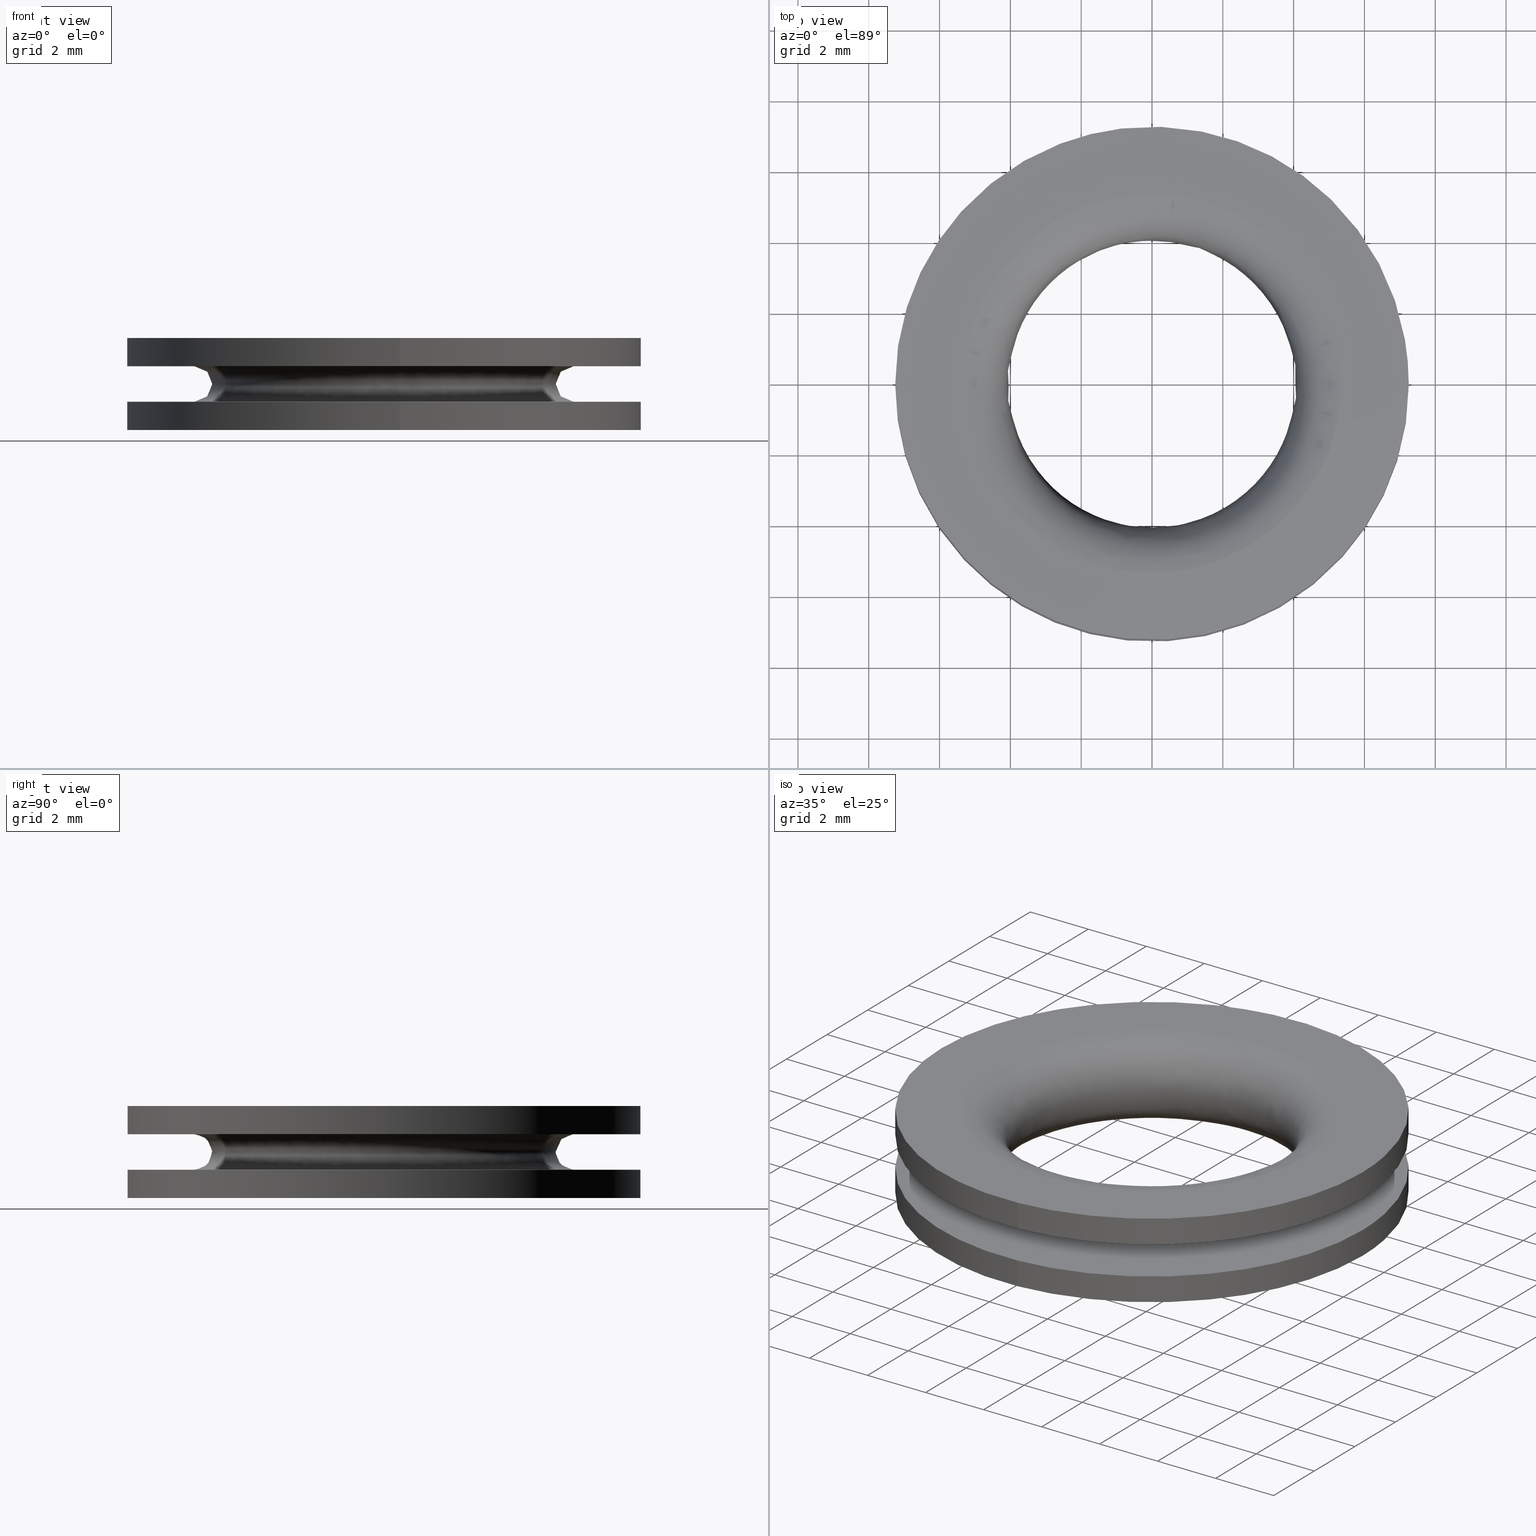
[diagram: canonical four-view strip — front | top / right | iso, engineering-drawing reading convention]
A machine part, canonical four-view strip (front | top / right | iso — engineering-drawing reading convention). The complete STEP part file that produces these views, byte-faithful:
ISO-10303-21;
HEADER;
/****************************************************************
 * Generated by software with PDE/Lib inside                    *
 * PDElib Version 4.4.1-0003, patched  Thursday August 19 11:58 *
 * International Technegroup Inc. (www.iti-oh.com)              *
 ****************************************************************/
FILE_DESCRIPTION((''),'2;1');
FILE_NAME('','2005-07-15T15:03:35',(''),(''),'','CADfix','');
FILE_SCHEMA(('AUTOMOTIVE_DESIGN'));
ENDSEC;
DATA;
#5=APPLICATION_CONTEXT('automotive design');
#6=APPLICATION_PROTOCOL_DEFINITION('Draft International Standard','automotive_design',1998,#5);
#7=PRODUCT_CONTEXT('None',#5,'mechanical');
#8=PRODUCT('grommet','','None',(#7));
#9=PRODUCT_RELATED_PRODUCT_CATEGORY('part','description',(#8));
#10=PRODUCT_DEFINITION_FORMATION('None','None',#8);
#11=PRODUCT_DEFINITION_CONTEXT('part definition',#5,'design');
#12=PRODUCT_DEFINITION('None','None',#10,#11);
#18=(NAMED_UNIT(*)PLANE_ANGLE_UNIT()SI_UNIT($,.RADIAN.));
#19=DIMENSIONAL_EXPONENTS(0.0,0.0,0.0,0.0,0.0,0.0,0.0);
#20=PLANE_ANGLE_MEASURE_WITH_UNIT(PLANE_ANGLE_MEASURE(0.017453292500000),#18);
#24=(CONVERSION_BASED_UNIT('DEGREE',#20)NAMED_UNIT(#19)PLANE_ANGLE_UNIT());
#28=(NAMED_UNIT(*)SI_UNIT($,.STERADIAN.)SOLID_ANGLE_UNIT());
#32=(LENGTH_UNIT()NAMED_UNIT(*)SI_UNIT(.MILLI.,.METRE.));
#34=UNCERTAINTY_MEASURE_WITH_UNIT(LENGTH_MEASURE(0.001000000000000),#32,'DISTANCE_ACCURACY_VALUE','');
#36=(GEOMETRIC_REPRESENTATION_CONTEXT(3)GLOBAL_UNCERTAINTY_ASSIGNED_CONTEXT((#34))GLOBAL_UNIT_ASSIGNED_CONTEXT((#24,#28,#32))REPRESENTATION_CONTEXT('None','None'));
#37=AXIS2_PLACEMENT_3D('',#38,#39,#40);
#38=CARTESIAN_POINT('',(0.0,0.0,0.0));
#39=DIRECTION('',(0.0,0.0,1.0));
#40=DIRECTION('',(1.0,0.0,0.0));
#41=ADVANCED_BREP_SHAPE_REPRESENTATION('',(#37,#973),#36);
#42=PRODUCT_DEFINITION_SHAPE('','',#12);
#43=SHAPE_DEFINITION_REPRESENTATION(#42,#41);
#44=CARTESIAN_POINT('',(-0.855748083227264,7.199318073127055,2.619998975000001));
#45=CARTESIAN_POINT('',(-0.649706693010609,7.223809215614775,2.619998975000001));
#46=CARTESIAN_POINT('',(-0.442601850579174,7.236476290423735,2.619998975000001));
#47=CARTESIAN_POINT('',(6.793874439844561,7.679078141002909,2.619998975000000));
#48=CARTESIAN_POINT('',(7.236476290423735,0.442601850579174,2.619998975000001));
#49=CARTESIAN_POINT('',(7.679078141002909,-6.793874439844561,2.619998975000000));
#50=CARTESIAN_POINT('',(0.442601850579174,-7.236476290423735,2.619998975000001));
#51=CARTESIAN_POINT('',(-0.855748083227264,7.199318073127055,1.779500025625000));
#52=CARTESIAN_POINT('',(-0.649706693010609,7.223809215614775,1.779500025625000));
#53=CARTESIAN_POINT('',(-0.442601850579174,7.236476290423735,1.779500025625000));
#54=CARTESIAN_POINT('',(6.793874439844561,7.679078141002909,1.779500025625001));
#55=CARTESIAN_POINT('',(7.236476290423735,0.442601850579174,1.779500025625000));
#56=CARTESIAN_POINT('',(7.679078141002909,-6.793874439844561,1.779500025625001));
#57=CARTESIAN_POINT('',(0.442601850579174,-7.236476290423735,1.779500025625000));
#65=(BOUNDED_SURFACE()B_SPLINE_SURFACE(2,1,((#44,#51),(#45,#52),(#46,#53),(#47,#54),(#48,#55),(#49,#56),(#50,#57)),.UNSPECIFIED.,.F.,.F.,.U.)B_SPLINE_SURFACE_WITH_KNOTS((3,2,2,3),(2,2),(0.0,0.480487666078621,12.492679318044130,24.504870970009630),(0.0,1.0),.UNSPECIFIED.)GEOMETRIC_REPRESENTATION_ITEM()RATIONAL_B_SPLINE_SURFACE(((0.977505800795127,0.977505800795127),(0.988284271247462,0.988284271247462),(1.0,1.0),(0.707106781186548,0.707106781186548),(1.0,1.0),(0.707106781186548,0.707106781186548),(1.0,1.0)))REPRESENTATION_ITEM('')SURFACE());
#66=CARTESIAN_POINT('',(-0.855743498730361,7.199318618061044,1.800000000000064));
#67=VERTEX_POINT('',#66);
#68=CARTESIAN_POINT('',(7.249999000000000,0.0,1.800000000000000));
#69=VERTEX_POINT('',#68);
#70=CARTESIAN_POINT('',(-0.855743498730361,7.199318618061044,1.800000000000064));
#71=CARTESIAN_POINT('',(-0.429372491770638,7.249998999999999,1.800000000000000));
#72=CARTESIAN_POINT('',(0.0,7.249999000000000,1.800000000000000));
#73=CARTESIAN_POINT('',(7.249998999999999,7.249998999999999,1.800000000000001));
#74=CARTESIAN_POINT('',(7.249999000000000,0.0,1.800000000000000));
#82=(BOUNDED_CURVE()B_SPLINE_CURVE(2,(#70,#71,#72,#73,#74),.UNSPECIFIED.,.F.,.U.)B_SPLINE_CURVE_WITH_KNOTS((3,2,3),(0.229562581136241,0.250000000000000,0.500000000000000),.UNSPECIFIED.)CURVE()GEOMETRIC_REPRESENTATION_ITEM()RATIONAL_B_SPLINE_CURVE((0.956026965128767,0.976056074419019,1.0,0.707106781186547,1.0))REPRESENTATION_ITEM(''));
#83=EDGE_CURVE('',#67,#69,#82,.T.);
#84=ORIENTED_EDGE('',*,*,#83,.F.);
#85=CARTESIAN_POINT('',(-0.855743555278183,7.199318611339550,2.599999000000000));
#86=VERTEX_POINT('',#85);
#87=CARTESIAN_POINT('',(-0.855743555278183,7.199318611339550,2.599999000000000));
#88=CARTESIAN_POINT('',(-0.855743498730361,7.199318618061044,1.800000000000064));
#89=QUASI_UNIFORM_CURVE('',1,(#87,#88),.UNSPECIFIED.,.F.,.U.);
#90=EDGE_CURVE('',#86,#67,#89,.T.);
#91=ORIENTED_EDGE('',*,*,#90,.F.);
#92=CARTESIAN_POINT('',(7.249999000000000,0.0,2.599999000000000));
#93=VERTEX_POINT('',#92);
#94=CARTESIAN_POINT('',(-0.855743555278183,7.199318611339550,2.599999000000000));
#95=CARTESIAN_POINT('',(-0.429372520343452,7.249999000000001,2.599999000000001));
#96=CARTESIAN_POINT('',(0.0,7.249999000000000,2.599999000000000));
#97=CARTESIAN_POINT('',(7.249998999999999,7.249998999999999,2.599999000000000));
#98=CARTESIAN_POINT('',(7.249999000000000,0.0,2.599999000000000));
#106=(BOUNDED_CURVE()B_SPLINE_CURVE(2,(#94,#95,#96,#97,#98),.UNSPECIFIED.,.F.,.U.)B_SPLINE_CURVE_WITH_KNOTS((3,2,3),(0.229562579808786,0.250000000000000,0.500000000000000),.UNSPECIFIED.)CURVE()GEOMETRIC_REPRESENTATION_ITEM()RATIONAL_B_SPLINE_CURVE((0.956026962526900,0.976056072863809,1.0,0.707106781186547,1.0))REPRESENTATION_ITEM(''));
#107=EDGE_CURVE('',#86,#93,#106,.T.);
#108=ORIENTED_EDGE('',*,*,#107,.T.);
#109=CARTESIAN_POINT('',(0.442599292946064,-7.236476446854370,2.599999000000000));
#110=VERTEX_POINT('',#109);
#111=CARTESIAN_POINT('',(7.249999000000000,0.0,2.599999000000000));
#112=CARTESIAN_POINT('',(7.249998999999999,-6.820120459342002,2.599999000000001));
#113=CARTESIAN_POINT('',(0.442599292946064,-7.236476446854370,2.599998999999999));
#121=(BOUNDED_CURVE()B_SPLINE_CURVE(2,(#111,#112,#113),.UNSPECIFIED.,.F.,.U.)B_SPLINE_CURVE_WITH_KNOTS((3,3),(0.500000000000000,0.739333023226263),.UNSPECIFIED.)CURVE()GEOMETRIC_REPRESENTATION_ITEM()RATIONAL_B_SPLINE_CURVE((1.0,0.719603921835620,0.976072172374189))REPRESENTATION_ITEM(''));
#122=EDGE_CURVE('',#93,#110,#121,.T.);
#123=ORIENTED_EDGE('',*,*,#122,.T.);
#124=CARTESIAN_POINT('',(0.442599261019222,-7.236476448807077,1.800000000000042));
#125=VERTEX_POINT('',#124);
#126=CARTESIAN_POINT('',(0.442599292946064,-7.236476446854370,2.599999000000000));
#127=CARTESIAN_POINT('',(0.442599261019222,-7.236476448807077,1.800000000000042));
#128=QUASI_UNIFORM_CURVE('',1,(#126,#127),.UNSPECIFIED.,.F.,.U.);
#129=EDGE_CURVE('',#110,#125,#128,.T.);
#130=ORIENTED_EDGE('',*,*,#129,.T.);
#131=CARTESIAN_POINT('',(7.249999000000000,0.0,1.800000000000000));
#132=CARTESIAN_POINT('',(7.249998999999999,-6.820120489488138,1.799999999999999));
#133=CARTESIAN_POINT('',(0.442599261019222,-7.236476448807077,1.800000000000042));
#141=(BOUNDED_CURVE()B_SPLINE_CURVE(2,(#131,#132,#133),.UNSPECIFIED.,.F.,.U.)B_SPLINE_CURVE_WITH_KNOTS((3,3),(0.500000000000000,0.739333023987528),.UNSPECIFIED.)CURVE()GEOMETRIC_REPRESENTATION_ITEM()RATIONAL_B_SPLINE_CURVE((1.0,0.719603920943743,0.976072174005725))REPRESENTATION_ITEM(''));
#142=EDGE_CURVE('',#69,#125,#141,.T.);
#143=ORIENTED_EDGE('',*,*,#142,.F.);
#144=EDGE_LOOP('',(#84,#91,#108,#123,#130,#143));
#145=FACE_OUTER_BOUND('',#144,.T.);
#146=ADVANCED_FACE('',(#145),#65,.T.);
#147=CARTESIAN_POINT('',(0.442601850579174,-7.236476290423735,2.619998975000001));
#148=CARTESIAN_POINT('',(-6.793874439844561,-7.679078141002909,2.619998975000000));
#149=CARTESIAN_POINT('',(-7.236476290423735,-0.442601850579174,2.619998975000001));
#150=CARTESIAN_POINT('',(-7.654448870524625,6.391189427042890,2.619998975000001));
#151=CARTESIAN_POINT('',(-0.855748083227264,7.199318073127055,2.619998975000001));
#152=CARTESIAN_POINT('',(0.442601850579174,-7.236476290423735,1.779500025625000));
#153=CARTESIAN_POINT('',(-6.793874439844561,-7.679078141002909,1.779500025625001));
#154=CARTESIAN_POINT('',(-7.236476290423735,-0.442601850579174,1.779500025625000));
#155=CARTESIAN_POINT('',(-7.654448870524625,6.391189427042890,1.779500025625000));
#156=CARTESIAN_POINT('',(-0.855748083227264,7.199318073127055,1.779500025625000));
#164=(BOUNDED_SURFACE()B_SPLINE_SURFACE(2,1,((#147,#152),(#148,#153),(#149,#154),(#150,#155),(#151,#156)),.UNSPECIFIED.,.F.,.F.,.U.)B_SPLINE_SURFACE_WITH_KNOTS((3,2,3),(2,2),(0.0,12.012191651965511,23.543895637852390),(0.0,1.0),.UNSPECIFIED.)GEOMETRIC_REPRESENTATION_ITEM()RATIONAL_B_SPLINE_SURFACE(((1.0,1.0),(0.707106781186548,0.707106781186548),(1.0,1.0),(0.718822509939086,0.718822509939086),(0.977505800795127,0.977505800795127)))REPRESENTATION_ITEM('')SURFACE());
#165=CARTESIAN_POINT('',(-7.249999000000000,0.0,1.800000000000000));
#166=VERTEX_POINT('',#165);
#167=CARTESIAN_POINT('',(-7.249999000000000,0.0,1.800000000000000));
#168=CARTESIAN_POINT('',(-7.249999000000000,6.439268554337739,1.800000000000001));
#169=CARTESIAN_POINT('',(-0.855743498730361,7.199318618061044,1.800000000000064));
#177=(BOUNDED_CURVE()B_SPLINE_CURVE(2,(#167,#168,#169),.UNSPECIFIED.,.F.,.U.)B_SPLINE_CURVE_WITH_KNOTS((3,3),(0.0,0.229562581136241),.UNSPECIFIED.)CURVE()GEOMETRIC_REPRESENTATION_ITEM()RATIONAL_B_SPLINE_CURVE((1.0,0.731050706767529,0.956026965128767))REPRESENTATION_ITEM(''));
#178=EDGE_CURVE('',#166,#67,#177,.T.);
#179=ORIENTED_EDGE('',*,*,#178,.F.);
#180=CARTESIAN_POINT('',(0.442599261019222,-7.236476448807077,1.800000000000042));
#181=CARTESIAN_POINT('',(0.221506204951630,-7.249999000000000,1.800000000000000));
#182=CARTESIAN_POINT('',(0.0,-7.249999000000000,1.800000000000000));
#183=CARTESIAN_POINT('',(-7.249998999999999,-7.249998999999999,1.800000000000001));
#184=CARTESIAN_POINT('',(-7.249999000000000,0.0,1.800000000000000));
#192=(BOUNDED_CURVE()B_SPLINE_CURVE(2,(#180,#181,#182,#183,#184),.UNSPECIFIED.,.F.,.U.)B_SPLINE_CURVE_WITH_KNOTS((3,2,3),(0.739333023987528,0.750000000000000,1.0),.UNSPECIFIED.)CURVE()GEOMETRIC_REPRESENTATION_ITEM()RATIONAL_B_SPLINE_CURVE((0.976072174005725,0.987502860242804,1.0,0.707106781186547,1.0))REPRESENTATION_ITEM(''));
#193=EDGE_CURVE('',#125,#166,#192,.T.);
#194=ORIENTED_EDGE('',*,*,#193,.F.);
#195=ORIENTED_EDGE('',*,*,#129,.F.);
#196=CARTESIAN_POINT('',(-7.249999000000000,0.0,2.599999000000000));
#197=VERTEX_POINT('',#196);
#198=CARTESIAN_POINT('',(0.442599292946064,-7.236476446854370,2.599998999999999));
#199=CARTESIAN_POINT('',(0.221506220959810,-7.249999000000000,2.599999000000000));
#200=CARTESIAN_POINT('',(0.0,-7.249999000000000,2.599999000000000));
#201=CARTESIAN_POINT('',(-7.249998999999999,-7.249998999999999,2.599999000000000));
#202=CARTESIAN_POINT('',(-7.249999000000000,0.0,2.599999000000000));
#210=(BOUNDED_CURVE()B_SPLINE_CURVE(2,(#198,#199,#200,#201,#202),.UNSPECIFIED.,.F.,.U.)B_SPLINE_CURVE_WITH_KNOTS((3,2,3),(0.739333023226263,0.750000000000000,1.0),.UNSPECIFIED.)CURVE()GEOMETRIC_REPRESENTATION_ITEM()RATIONAL_B_SPLINE_CURVE((0.976072172374189,0.987502859350927,1.0,0.707106781186547,1.0))REPRESENTATION_ITEM(''));
#211=EDGE_CURVE('',#110,#197,#210,.T.);
#212=ORIENTED_EDGE('',*,*,#211,.T.);
#213=CARTESIAN_POINT('',(-7.249999000000000,0.0,2.599999000000000));
#214=CARTESIAN_POINT('',(-7.249998999999999,6.439268503403767,2.599999000000000));
#215=CARTESIAN_POINT('',(-0.855743555278183,7.199318611339550,2.599999000000000));
#223=(BOUNDED_CURVE()B_SPLINE_CURVE(2,(#213,#214,#215),.UNSPECIFIED.,.F.,.U.)B_SPLINE_CURVE_WITH_KNOTS((3,3),(0.0,0.229562579808786),.UNSPECIFIED.)CURVE()GEOMETRIC_REPRESENTATION_ITEM()RATIONAL_B_SPLINE_CURVE((1.0,0.731050708322738,0.956026962526900))REPRESENTATION_ITEM(''));
#224=EDGE_CURVE('',#197,#86,#223,.T.);
#225=ORIENTED_EDGE('',*,*,#224,.T.);
#226=ORIENTED_EDGE('',*,*,#90,.T.);
#227=EDGE_LOOP('',(#179,#194,#195,#212,#225,#226));
#228=FACE_OUTER_BOUND('',#227,.T.);
#229=ADVANCED_FACE('',(#228),#164,.T.);
#230=CARTESIAN_POINT('',(-0.855748083227264,7.199318073127055,0.819999999999990));
#231=CARTESIAN_POINT('',(-0.649706693010609,7.223809215614775,0.819999999999990));
#232=CARTESIAN_POINT('',(-0.442601850579174,7.236476290423735,0.819999999999990));
#233=CARTESIAN_POINT('',(6.793874439844561,7.679078141002909,0.819999999999990));
#234=CARTESIAN_POINT('',(7.236476290423735,0.442601850579174,0.819999999999990));
#235=CARTESIAN_POINT('',(7.679078141002909,-6.793874439844561,0.819999999999990));
#236=CARTESIAN_POINT('',(0.442601850579174,-7.236476290423735,0.819999999999990));
#237=CARTESIAN_POINT('',(-0.855748083227264,7.199318073127055,-0.020500000000000));
#238=CARTESIAN_POINT('',(-0.649706693010609,7.223809215614775,-0.020500000000000));
#239=CARTESIAN_POINT('',(-0.442601850579174,7.236476290423735,-0.020500000000000));
#240=CARTESIAN_POINT('',(6.793874439844561,7.679078141002909,-0.020500000000000));
#241=CARTESIAN_POINT('',(7.236476290423735,0.442601850579174,-0.020500000000000));
#242=CARTESIAN_POINT('',(7.679078141002909,-6.793874439844561,-0.020500000000000));
#243=CARTESIAN_POINT('',(0.442601850579174,-7.236476290423735,-0.020500000000000));
#251=(BOUNDED_SURFACE()B_SPLINE_SURFACE(2,1,((#230,#237),(#231,#238),(#232,#239),(#233,#240),(#234,#241),(#235,#242),(#236,#243)),.UNSPECIFIED.,.F.,.F.,.U.)B_SPLINE_SURFACE_WITH_KNOTS((3,2,2,3),(2,2),(0.0,0.480487666078621,12.492679318044130,24.504870970009630),(0.0,1.0),.UNSPECIFIED.)GEOMETRIC_REPRESENTATION_ITEM()RATIONAL_B_SPLINE_SURFACE(((0.977505800795127,0.977505800795127),(0.988284271247462,0.988284271247462),(1.0,1.0),(0.707106781186548,0.707106781186548),(1.0,1.0),(0.707106781186548,0.707106781186548),(1.0,1.0)))REPRESENTATION_ITEM('')SURFACE());
#252=CARTESIAN_POINT('',(-0.855743500075938,7.199318617901104,0.799999999999926));
#253=VERTEX_POINT('',#252);
#254=CARTESIAN_POINT('',(7.249999000000000,0.0,0.799999999999990));
#255=VERTEX_POINT('',#254);
#256=CARTESIAN_POINT('',(-0.855743500075938,7.199318617901104,0.799999999999926));
#257=CARTESIAN_POINT('',(-0.429372492450539,7.249999000000001,0.799999999999990));
#258=CARTESIAN_POINT('',(0.0,7.249999000000000,0.799999999999990));
#259=CARTESIAN_POINT('',(7.249998999999999,7.249998999999999,0.799999999999990));
#260=CARTESIAN_POINT('',(7.249999000000000,0.0,0.799999999999990));
#268=(BOUNDED_CURVE()B_SPLINE_CURVE(2,(#256,#257,#258,#259,#260),.UNSPECIFIED.,.F.,.U.)B_SPLINE_CURVE_WITH_KNOTS((3,2,3),(0.229562581104653,0.250000000000000,0.500000000000000),.UNSPECIFIED.)CURVE()GEOMETRIC_REPRESENTATION_ITEM()RATIONAL_B_SPLINE_CURVE((0.956026965066855,0.976056074382012,1.0,0.707106781186547,1.0))REPRESENTATION_ITEM(''));
#269=EDGE_CURVE('',#253,#255,#268,.T.);
#270=ORIENTED_EDGE('',*,*,#269,.T.);
#271=CARTESIAN_POINT('',(0.442599261778933,-7.236476448760612,0.799999999999948));
#272=VERTEX_POINT('',#271);
#273=CARTESIAN_POINT('',(7.249999000000000,0.0,0.799999999999990));
#274=CARTESIAN_POINT('',(7.249998999999998,-6.820120488770804,0.799999999999990));
#275=CARTESIAN_POINT('',(0.442599261778933,-7.236476448760612,0.799999999999948));
#283=(BOUNDED_CURVE()B_SPLINE_CURVE(2,(#273,#274,#275),.UNSPECIFIED.,.F.,.U.)B_SPLINE_CURVE_WITH_KNOTS((3,3),(0.500000000000000,0.739333023969413),.UNSPECIFIED.)CURVE()GEOMETRIC_REPRESENTATION_ITEM()RATIONAL_B_SPLINE_CURVE((1.0,0.719603920964966,0.976072173966902))REPRESENTATION_ITEM(''));
#284=EDGE_CURVE('',#255,#272,#283,.T.);
#285=ORIENTED_EDGE('',*,*,#284,.T.);
#286=CARTESIAN_POINT('',(0.442599292946064,-7.236476446854370,6.938894E-018));
#287=VERTEX_POINT('',#286);
#288=CARTESIAN_POINT('',(0.442599261778933,-7.236476448760612,0.799999999999948));
#289=CARTESIAN_POINT('',(0.442599292946064,-7.236476446854370,6.938894E-018));
#290=QUASI_UNIFORM_CURVE('',1,(#288,#289),.UNSPECIFIED.,.F.,.U.);
#291=EDGE_CURVE('',#272,#287,#290,.T.);
#292=ORIENTED_EDGE('',*,*,#291,.T.);
#293=CARTESIAN_POINT('',(7.249999000000000,0.0,0.0));
#294=VERTEX_POINT('',#293);
#295=CARTESIAN_POINT('',(7.249999000000000,0.0,0.0));
#296=CARTESIAN_POINT('',(7.249998999999999,-6.820120459342002,0.0));
#297=CARTESIAN_POINT('',(0.442599292946064,-7.236476446854370,6.938894E-018));
#305=(BOUNDED_CURVE()B_SPLINE_CURVE(2,(#295,#296,#297),.UNSPECIFIED.,.F.,.U.)B_SPLINE_CURVE_WITH_KNOTS((3,3),(0.500000000000000,0.739333023226263),.UNSPECIFIED.)CURVE()GEOMETRIC_REPRESENTATION_ITEM()RATIONAL_B_SPLINE_CURVE((1.0,0.719603921835620,0.976072172374189))REPRESENTATION_ITEM(''));
#306=EDGE_CURVE('',#294,#287,#305,.T.);
#307=ORIENTED_EDGE('',*,*,#306,.F.);
#308=CARTESIAN_POINT('',(-0.855743555278183,7.199318611339550,-4.081678E-017));
#309=VERTEX_POINT('',#308);
#310=CARTESIAN_POINT('',(-0.855743555278183,7.199318611339550,-4.081678E-017));
#311=CARTESIAN_POINT('',(-0.429372520343452,7.249999000000001,0.0));
#312=CARTESIAN_POINT('',(0.0,7.249999000000000,0.0));
#313=CARTESIAN_POINT('',(7.249998999999999,7.249998999999999,0.0));
#314=CARTESIAN_POINT('',(7.249999000000000,0.0,0.0));
#322=(BOUNDED_CURVE()B_SPLINE_CURVE(2,(#310,#311,#312,#313,#314),.UNSPECIFIED.,.F.,.U.)B_SPLINE_CURVE_WITH_KNOTS((3,2,3),(0.229562579808786,0.250000000000000,0.500000000000000),.UNSPECIFIED.)CURVE()GEOMETRIC_REPRESENTATION_ITEM()RATIONAL_B_SPLINE_CURVE((0.956026962526900,0.976056072863809,1.0,0.707106781186547,1.0))REPRESENTATION_ITEM(''));
#323=EDGE_CURVE('',#309,#294,#322,.T.);
#324=ORIENTED_EDGE('',*,*,#323,.F.);
#325=CARTESIAN_POINT('',(-0.855743500075938,7.199318617901104,0.799999999999926));
#326=CARTESIAN_POINT('',(-0.855743555278183,7.199318611339550,-4.081678E-017));
#327=QUASI_UNIFORM_CURVE('',1,(#325,#326),.UNSPECIFIED.,.F.,.U.);
#328=EDGE_CURVE('',#253,#309,#327,.T.);
#329=ORIENTED_EDGE('',*,*,#328,.F.);
#330=EDGE_LOOP('',(#270,#285,#292,#307,#324,#329));
#331=FACE_OUTER_BOUND('',#330,.T.);
#332=ADVANCED_FACE('',(#331),#251,.T.);
#333=CARTESIAN_POINT('',(0.442601850579174,-7.236476290423735,0.819999999999990));
#334=CARTESIAN_POINT('',(-6.793874439844561,-7.679078141002909,0.819999999999990));
#335=CARTESIAN_POINT('',(-7.236476290423735,-0.442601850579174,0.819999999999990));
#336=CARTESIAN_POINT('',(-7.654448870524625,6.391189427042890,0.819999999999990));
#337=CARTESIAN_POINT('',(-0.855748083227264,7.199318073127055,0.819999999999990));
#338=CARTESIAN_POINT('',(0.442601850579174,-7.236476290423735,-0.020500000000000));
#339=CARTESIAN_POINT('',(-6.793874439844561,-7.679078141002909,-0.020500000000000));
#340=CARTESIAN_POINT('',(-7.236476290423735,-0.442601850579174,-0.020500000000000));
#341=CARTESIAN_POINT('',(-7.654448870524625,6.391189427042890,-0.020500000000000));
#342=CARTESIAN_POINT('',(-0.855748083227264,7.199318073127055,-0.020500000000000));
#350=(BOUNDED_SURFACE()B_SPLINE_SURFACE(2,1,((#333,#338),(#334,#339),(#335,#340),(#336,#341),(#337,#342)),.UNSPECIFIED.,.F.,.F.,.U.)B_SPLINE_SURFACE_WITH_KNOTS((3,2,3),(2,2),(0.0,12.012191651965511,23.543895637852390),(0.0,1.0),.UNSPECIFIED.)GEOMETRIC_REPRESENTATION_ITEM()RATIONAL_B_SPLINE_SURFACE(((1.0,1.0),(0.707106781186548,0.707106781186548),(1.0,1.0),(0.718822509939086,0.718822509939086),(0.977505800795127,0.977505800795127)))REPRESENTATION_ITEM('')SURFACE());
#351=CARTESIAN_POINT('',(-7.249999000000000,0.0,0.799999999999990));
#352=VERTEX_POINT('',#351);
#353=CARTESIAN_POINT('',(-7.249999000000000,0.0,0.799999999999990));
#354=CARTESIAN_POINT('',(-7.249999000000001,6.439268553125745,0.799999999999990));
#355=CARTESIAN_POINT('',(-0.855743500075938,7.199318617901104,0.799999999999926));
#363=(BOUNDED_CURVE()B_SPLINE_CURVE(2,(#353,#354,#355),.UNSPECIFIED.,.F.,.U.)B_SPLINE_CURVE_WITH_KNOTS((3,3),(0.0,0.229562581104653),.UNSPECIFIED.)CURVE()GEOMETRIC_REPRESENTATION_ITEM()RATIONAL_B_SPLINE_CURVE((1.0,0.731050706804535,0.956026965066855))REPRESENTATION_ITEM(''));
#364=EDGE_CURVE('',#352,#253,#363,.T.);
#365=ORIENTED_EDGE('',*,*,#364,.T.);
#366=ORIENTED_EDGE('',*,*,#328,.T.);
#367=CARTESIAN_POINT('',(-7.249999000000000,0.0,0.0));
#368=VERTEX_POINT('',#367);
#369=CARTESIAN_POINT('',(-7.249999000000000,0.0,0.0));
#370=CARTESIAN_POINT('',(-7.249998999999999,6.439268503403767,0.0));
#371=CARTESIAN_POINT('',(-0.855743555278183,7.199318611339550,-4.081678E-017));
#379=(BOUNDED_CURVE()B_SPLINE_CURVE(2,(#369,#370,#371),.UNSPECIFIED.,.F.,.U.)B_SPLINE_CURVE_WITH_KNOTS((3,3),(0.0,0.229562579808786),.UNSPECIFIED.)CURVE()GEOMETRIC_REPRESENTATION_ITEM()RATIONAL_B_SPLINE_CURVE((1.0,0.731050708322738,0.956026962526900))REPRESENTATION_ITEM(''));
#380=EDGE_CURVE('',#368,#309,#379,.T.);
#381=ORIENTED_EDGE('',*,*,#380,.F.);
#382=CARTESIAN_POINT('',(0.442599292946064,-7.236476446854370,6.938894E-018));
#383=CARTESIAN_POINT('',(0.221506220959810,-7.249999000000000,0.0));
#384=CARTESIAN_POINT('',(0.0,-7.249999000000000,0.0));
#385=CARTESIAN_POINT('',(-7.249998999999999,-7.249998999999999,0.0));
#386=CARTESIAN_POINT('',(-7.249999000000000,0.0,0.0));
#394=(BOUNDED_CURVE()B_SPLINE_CURVE(2,(#382,#383,#384,#385,#386),.UNSPECIFIED.,.F.,.U.)B_SPLINE_CURVE_WITH_KNOTS((3,2,3),(0.739333023226263,0.750000000000000,1.0),.UNSPECIFIED.)CURVE()GEOMETRIC_REPRESENTATION_ITEM()RATIONAL_B_SPLINE_CURVE((0.976072172374189,0.987502859350927,1.0,0.707106781186547,1.0))REPRESENTATION_ITEM(''));
#395=EDGE_CURVE('',#287,#368,#394,.T.);
#396=ORIENTED_EDGE('',*,*,#395,.F.);
#397=ORIENTED_EDGE('',*,*,#291,.F.);
#398=CARTESIAN_POINT('',(0.442599261778933,-7.236476448760612,0.799999999999948));
#399=CARTESIAN_POINT('',(0.221506205332549,-7.249999000000000,0.799999999999990));
#400=CARTESIAN_POINT('',(0.0,-7.249999000000000,0.799999999999990));
#401=CARTESIAN_POINT('',(-7.249998999999999,-7.249998999999999,0.799999999999990));
#402=CARTESIAN_POINT('',(-7.249999000000000,0.0,0.799999999999990));
#410=(BOUNDED_CURVE()B_SPLINE_CURVE(2,(#398,#399,#400,#401,#402),.UNSPECIFIED.,.F.,.U.)B_SPLINE_CURVE_WITH_KNOTS((3,2,3),(0.739333023969413,0.750000000000000,1.0),.UNSPECIFIED.)CURVE()GEOMETRIC_REPRESENTATION_ITEM()RATIONAL_B_SPLINE_CURVE((0.976072173966902,0.987502860221582,1.0,0.707106781186547,1.0))REPRESENTATION_ITEM(''));
#411=EDGE_CURVE('',#272,#352,#410,.T.);
#412=ORIENTED_EDGE('',*,*,#411,.T.);
#413=EDGE_LOOP('',(#365,#366,#381,#396,#397,#412));
#414=FACE_OUTER_BOUND('',#413,.T.);
#415=ADVANCED_FACE('',(#414),#350,.T.);
#416=CARTESIAN_POINT('',(-0.378021535003866,5.407773163487816,0.805062590822147));
#417=CARTESIAN_POINT('',(-0.223253539749460,5.418591966970651,0.805062590822147));
#418=CARTESIAN_POINT('',(-0.068120119579436,5.420541533645340,0.805062590822147));
#419=CARTESIAN_POINT('',(5.352421414065902,5.488661653224773,0.805062590822147));
#420=CARTESIAN_POINT('',(5.420541533645340,0.068120119579436,0.805062590822147));
#421=CARTESIAN_POINT('',(5.488661653224773,-5.352421414065901,0.805062590822147));
#422=CARTESIAN_POINT('',(0.068120119579432,-5.420541533645340,0.805062590822147));
#423=CARTESIAN_POINT('',(-0.338205863657471,4.838191541660136,0.723188124372387));
#424=CARTESIAN_POINT('',(-0.199739033980647,4.847870838834612,0.723188124372387));
#425=CARTESIAN_POINT('',(-0.060945268302182,4.849615064546418,0.723188124372387));
#426=CARTESIAN_POINT('',(4.788669796244236,4.910560332848600,0.723188124372387));
#427=CARTESIAN_POINT('',(4.849615064546418,0.060945268302182,0.723188124372387));
#428=CARTESIAN_POINT('',(4.910560332848600,-4.788669796244236,0.723188124372387));
#429=CARTESIAN_POINT('',(0.060945268302178,-4.849615064546418,0.723188124372387));
#430=CARTESIAN_POINT('',(-0.338205863657470,4.838191541660137,1.300000000000000));
#431=CARTESIAN_POINT('',(-0.199739033980647,4.847870838834611,1.300000000000000));
#432=CARTESIAN_POINT('',(-0.060945268302182,4.849615064546418,1.300000000000000));
#433=CARTESIAN_POINT('',(4.788669796244236,4.910560332848600,1.300000000000000));
#434=CARTESIAN_POINT('',(4.849615064546418,0.060945268302182,1.300000000000000));
#435=CARTESIAN_POINT('',(4.910560332848601,-4.788669796244236,1.300000000000000));
#436=CARTESIAN_POINT('',(0.060945268302178,-4.849615064546418,1.300000000000000));
#437=CARTESIAN_POINT('',(-0.338205863657471,4.838191541660137,1.876812010567069));
#438=CARTESIAN_POINT('',(-0.199739033980647,4.847870838834613,1.876812010567070));
#439=CARTESIAN_POINT('',(-0.060945268302182,4.849615064546419,1.876812010567070));
#440=CARTESIAN_POINT('',(4.788669796244236,4.910560332848601,1.876812010567070));
#441=CARTESIAN_POINT('',(4.849615064546419,0.060945268302182,1.876812010567070));
#442=CARTESIAN_POINT('',(4.910560332848601,-4.788669796244236,1.876812010567070));
#443=CARTESIAN_POINT('',(0.060945268302178,-4.849615064546419,1.876812010567070));
#444=CARTESIAN_POINT('',(-0.378021542996223,5.407773277822174,1.794937392742857));
#445=CARTESIAN_POINT('',(-0.223253544469619,5.418592081533747,1.794937392742857));
#446=CARTESIAN_POINT('',(-0.068120121019672,5.420541648249652,1.794937392742856));
#447=CARTESIAN_POINT('',(5.352421527229978,5.488661769269324,1.794937392742857));
#448=CARTESIAN_POINT('',(5.420541648249652,0.068120121019673,1.794937392742856));
#449=CARTESIAN_POINT('',(5.488661769269324,-5.352421527229978,1.794937392742857));
#450=CARTESIAN_POINT('',(0.068120121019668,-5.420541648249652,1.794937392742856));
#458=(BOUNDED_SURFACE()B_SPLINE_SURFACE(2,2,((#416,#423,#430,#437,#444),(#417,#424,#431,#438,#445),(#418,#425,#432,#439,#446),(#419,#426,#433,#440,#447),(#420,#427,#434,#441,#448),(#421,#428,#435,#442,#449),(#422,#429,#436,#443,#450)),.UNSPECIFIED.,.F.,.F.,.U.)B_SPLINE_SURFACE_WITH_KNOTS((3,2,2,3),(3,2,3),(0.0,0.359269922421112,9.341026548619535,18.322783174817960),(0.0,0.913128094382075,1.826256327677659),.UNSPECIFIED.)GEOMETRIC_REPRESENTATION_ITEM()RATIONAL_B_SPLINE_SURFACE(((0.963494758864992,0.635663683750071,0.977505821353428,0.635663631745876,0.963494858610411),(0.974118727049988,0.642672824890053,0.988284282420452,0.642672772312435,0.974118827895249),(0.985666517597781,0.650291455932147,1.0,0.650291402731242,0.985666619638522),(0.696971478581921,0.459825498237294,0.707106781186548,0.459825460618574,0.696971550735621),(0.985666517597781,0.650291455932147,1.0,0.650291402731242,0.985666619638522),(0.696971478581921,0.459825498237294,0.707106781186548,0.459825460618574,0.696971550735621),(0.985666517597781,0.650291455932147,1.0,0.650291402731242,0.985666619638522)))REPRESENTATION_ITEM('')SURFACE());
#459=CARTESIAN_POINT('',(-0.373072758286736,5.336974386022495,1.799999999999999));
#460=VERTEX_POINT('',#459);
#461=CARTESIAN_POINT('',(5.349998026179940,0.0,1.800000000000000));
#462=VERTEX_POINT('',#461);
#463=CARTESIAN_POINT('',(-0.373072758286736,5.336974386022495,1.800000000000000));
#464=CARTESIAN_POINT('',(-0.186763701025012,5.349998026179939,1.800000000000000));
#465=CARTESIAN_POINT('',(0.0,5.349998026179940,1.800000000000000));
#466=CARTESIAN_POINT('',(5.349998026179940,5.349998026179940,1.800000000000001));
#467=CARTESIAN_POINT('',(5.349998026179940,0.0,1.800000000000000));
#475=(BOUNDED_CURVE()B_SPLINE_CURVE(2,(#463,#464,#465,#466,#467),.UNSPECIFIED.,.F.,.U.)B_SPLINE_CURVE_WITH_KNOTS((3,2,3),(0.237833686535159,0.250000000000000,0.500000000000000),.UNSPECIFIED.)CURVE()GEOMETRIC_REPRESENTATION_ITEM()RATIONAL_B_SPLINE_CURVE((0.972879876387119,0.985746277152757,1.0,0.707106781186547,1.0))REPRESENTATION_ITEM(''));
#476=EDGE_CURVE('',#460,#462,#475,.T.);
#477=ORIENTED_EDGE('',*,*,#476,.T.);
#478=CARTESIAN_POINT('',(0.067228288577137,-5.349575612808802,1.800000000000000));
#479=VERTEX_POINT('',#478);
#480=CARTESIAN_POINT('',(5.349998026179940,0.0,1.800000000000000));
#481=CARTESIAN_POINT('',(5.349998026179939,-5.283186875824364,1.800000000000001));
#482=CARTESIAN_POINT('',(0.067228288577137,-5.349575612808802,1.800000000000000));
#490=(BOUNDED_CURVE()B_SPLINE_CURVE(2,(#480,#481,#482),.UNSPECIFIED.,.F.,.U.)B_SPLINE_CURVE_WITH_KNOTS((3,3),(0.500000000000000,0.747784295921432),.UNSPECIFIED.)CURVE()GEOMETRIC_REPRESENTATION_ITEM()RATIONAL_B_SPLINE_CURVE((1.0,0.709702639984587,0.994854295643330))REPRESENTATION_ITEM(''));
#491=EDGE_CURVE('',#462,#479,#490,.T.);
#492=ORIENTED_EDGE('',*,*,#491,.T.);
#493=CARTESIAN_POINT('',(0.067228288247852,-5.349575586635289,0.799999999999995));
#494=VERTEX_POINT('',#493);
#495=CARTESIAN_POINT('',(0.067228288247852,-5.349575586635289,0.799999999999995));
#496=CARTESIAN_POINT('',(0.060945268302182,-4.849615064546419,0.800000000025973));
#497=CARTESIAN_POINT('',(0.060945268302182,-4.849615064546418,1.300000000000000));
#498=CARTESIAN_POINT('',(0.060945268302182,-4.849615064546418,1.800000026145256));
#499=CARTESIAN_POINT('',(0.067228288577137,-5.349575612808802,1.800000000000000));
#507=(BOUNDED_CURVE()B_SPLINE_CURVE(2,(#495,#496,#497,#498,#499),.UNSPECIFIED.,.F.,.U.)B_SPLINE_CURVE_WITH_KNOTS((3,2,3),(-3.781082537344727,-2.0,-0.218917399069919),.UNSPECIFIED.)CURVE()GEOMETRIC_REPRESENTATION_ITEM()RATIONAL_B_SPLINE_CURVE((0.930396133905855,0.682054299141273,1.0,0.682054287790485,0.930396151637660))REPRESENTATION_ITEM(''));
#508=EDGE_CURVE('',#494,#479,#507,.T.);
#509=ORIENTED_EDGE('',*,*,#508,.F.);
#510=CARTESIAN_POINT('',(5.349998000000000,0.0,0.799999999999990));
#511=VERTEX_POINT('',#510);
#512=CARTESIAN_POINT('',(5.349998000000000,0.0,0.799999999999990));
#513=CARTESIAN_POINT('',(5.349998000000000,-5.283186849972028,0.799999999999990));
#514=CARTESIAN_POINT('',(0.067228288247852,-5.349575586635289,0.799999999999995));
#522=(BOUNDED_CURVE()B_SPLINE_CURVE(2,(#512,#513,#514),.UNSPECIFIED.,.F.,.U.)B_SPLINE_CURVE_WITH_KNOTS((3,3),(0.500000000000000,0.747784295921454),.UNSPECIFIED.)CURVE()GEOMETRIC_REPRESENTATION_ITEM()RATIONAL_B_SPLINE_CURVE((1.0,0.709702639984561,0.994854295643381))REPRESENTATION_ITEM(''));
#523=EDGE_CURVE('',#511,#494,#522,.T.);
#524=ORIENTED_EDGE('',*,*,#523,.F.);
#525=CARTESIAN_POINT('',(-0.373072756460801,5.336974359902847,0.799999999999995));
#526=VERTEX_POINT('',#525);
#527=CARTESIAN_POINT('',(-0.373072756460801,5.336974359902848,0.799999999999995));
#528=CARTESIAN_POINT('',(-0.186763700111011,5.349998000000001,0.799999999999990));
#529=CARTESIAN_POINT('',(0.0,5.349998000000000,0.799999999999990));
#530=CARTESIAN_POINT('',(5.349998000000001,5.349998000000001,0.799999999999990));
#531=CARTESIAN_POINT('',(5.349998000000000,0.0,0.799999999999990));
#539=(BOUNDED_CURVE()B_SPLINE_CURVE(2,(#527,#528,#529,#530,#531),.UNSPECIFIED.,.F.,.U.)B_SPLINE_CURVE_WITH_KNOTS((3,2,3),(0.237833686535164,0.250000000000000,0.500000000000000),.UNSPECIFIED.)CURVE()GEOMETRIC_REPRESENTATION_ITEM()RATIONAL_B_SPLINE_CURVE((0.972879876387130,0.985746277152763,1.0,0.707106781186547,1.0))REPRESENTATION_ITEM(''));
#540=EDGE_CURVE('',#526,#511,#539,.T.);
#541=ORIENTED_EDGE('',*,*,#540,.F.);
#542=CARTESIAN_POINT('',(-0.373072756460800,5.336974359902847,0.799999999999995));
#543=CARTESIAN_POINT('',(-0.338206130674393,4.838191522994749,0.800000000024361));
#544=CARTESIAN_POINT('',(-0.338206130674392,4.838191522994748,1.300000000000000));
#545=CARTESIAN_POINT('',(-0.338206130674393,4.838191522994750,1.800000026162486));
#546=CARTESIAN_POINT('',(-0.373072758286736,5.336974386022495,1.800000000000000));
#554=(BOUNDED_CURVE()B_SPLINE_CURVE(2,(#542,#543,#544,#545,#546),.UNSPECIFIED.,.F.,.U.)B_SPLINE_CURVE_WITH_KNOTS((3,2,3),(-3.781082537348646,-2.0,-0.218917399028053),.UNSPECIFIED.)CURVE()GEOMETRIC_REPRESENTATION_ITEM()RATIONAL_B_SPLINE_CURVE((0.909467617931401,0.666712033867165,0.977505800795127,0.666712022765083,0.909467635274687))REPRESENTATION_ITEM(''));
#555=EDGE_CURVE('',#526,#460,#554,.T.);
#556=ORIENTED_EDGE('',*,*,#555,.T.);
#557=EDGE_LOOP('',(#477,#492,#509,#524,#541,#556));
#558=FACE_OUTER_BOUND('',#557,.T.);
#559=ADVANCED_FACE('',(#558),#458,.F.);
#560=CARTESIAN_POINT('',(0.068120120789176,-5.420541629908378,0.805062604626885));
#561=CARTESIAN_POINT('',(-5.352421509119202,-5.488661750697554,0.805062604626885));
#562=CARTESIAN_POINT('',(-5.420541629908378,-0.068120120789176,0.805062604626885));
#563=CARTESIAN_POINT('',(-5.484871100302095,5.050787013540163,0.805062604626885));
#564=CARTESIAN_POINT('',(-0.378021840168925,5.407773238661311,0.805062604626885));
#565=CARTESIAN_POINT('',(0.060945268302181,-4.849615064546418,0.723188011028642));
#566=CARTESIAN_POINT('',(-4.788669796244237,-4.910560332848601,0.723188011028643));
#567=CARTESIAN_POINT('',(-4.849615064546418,-0.060945268302182,0.723188011028642));
#568=CARTESIAN_POINT('',(-4.907168938313260,4.518805400096856,0.723188011028643));
#569=CARTESIAN_POINT('',(-0.338206130674393,4.838191522994748,0.723188011028642));
#570=CARTESIAN_POINT('',(0.060945268302181,-4.849615064546418,1.300000000000000));
#571=CARTESIAN_POINT('',(-4.788669796244236,-4.910560332848600,1.300000000000000));
#572=CARTESIAN_POINT('',(-4.849615064546418,-0.060945268302182,1.300000000000000));
#573=CARTESIAN_POINT('',(-4.907168938313259,4.518805400096854,1.300000000000000));
#574=CARTESIAN_POINT('',(-0.338206130674393,4.838191522994748,1.300000000000000));
#575=CARTESIAN_POINT('',(0.060945268302181,-4.849615064546418,1.876812015959251));
#576=CARTESIAN_POINT('',(-4.788669796244238,-4.910560332848600,1.876812015959251));
#577=CARTESIAN_POINT('',(-4.849615064546418,-0.060945268302182,1.876812015959251));
#578=CARTESIAN_POINT('',(-4.907168938313258,4.518805400096856,1.876812015959250));
#579=CARTESIAN_POINT('',(-0.338206130674392,4.838191522994747,1.876812015959250));
#580=CARTESIAN_POINT('',(0.068120121077223,-5.420541652829241,1.794937392086113));
#581=CARTESIAN_POINT('',(-5.352421531752017,-5.488661773906464,1.794937392086114));
#582=CARTESIAN_POINT('',(-5.420541652829241,-0.068120121077224,1.794937392086113));
#583=CARTESIAN_POINT('',(-5.484871123494975,5.050787034897511,1.794937392086113));
#584=CARTESIAN_POINT('',(-0.378021841767398,5.407773261528181,1.794937392086114));
#592=(BOUNDED_SURFACE()B_SPLINE_SURFACE(2,2,((#560,#565,#570,#575,#580),(#561,#566,#571,#576,#581),(#562,#567,#572,#577,#582),(#563,#568,#573,#578,#583),(#564,#569,#574,#579,#584)),.UNSPECIFIED.,.F.,.F.,.U.)B_SPLINE_SURFACE_WITH_KNOTS((3,2,3),(3,2,3),(0.0,8.981756633786729,17.604243002221988),(0.0,0.913128211112289,1.826256450007279),.UNSPECIFIED.)GEOMETRIC_REPRESENTATION_ITEM()RATIONAL_B_SPLINE_SURFACE(((0.985666603307920,0.650291411245515,1.0,0.650291400605334,0.985666623716071),(0.696971539188141,0.459825466639074,0.707106781186548,0.459825459115330,0.696971553618883),(0.985666603307920,0.650291411245515,1.0,0.650291400605334,0.985666623716071),(0.708519341752932,0.467444104423331,0.718822509939086,0.467444096774930,0.708519356422771),(0.963494822383521,0.635663626699740,0.977505800795127,0.635663616298902,0.963494842332607)))REPRESENTATION_ITEM('')SURFACE());
#593=CARTESIAN_POINT('',(-5.349998026179940,0.0,1.800000000000000));
#594=VERTEX_POINT('',#593);
#595=CARTESIAN_POINT('',(-5.349998026179940,0.0,1.800000000000000));
#596=CARTESIAN_POINT('',(-5.349998026179940,4.989070292217197,1.800000000000000));
#597=CARTESIAN_POINT('',(-0.373072758286736,5.336974386022495,1.799999999999999));
#605=(BOUNDED_CURVE()B_SPLINE_CURVE(2,(#595,#596,#597),.UNSPECIFIED.,.F.,.U.)B_SPLINE_CURVE_WITH_KNOTS((3,3),(0.0,0.237833686535159),.UNSPECIFIED.)CURVE()GEOMETRIC_REPRESENTATION_ITEM()RATIONAL_B_SPLINE_CURVE((1.0,0.721360504033790,0.972879876387119))REPRESENTATION_ITEM(''));
#606=EDGE_CURVE('',#594,#460,#605,.T.);
#607=ORIENTED_EDGE('',*,*,#606,.T.);
#608=ORIENTED_EDGE('',*,*,#555,.F.);
#609=CARTESIAN_POINT('',(-5.349998000000000,0.0,0.799999999999990));
#610=VERTEX_POINT('',#609);
#611=CARTESIAN_POINT('',(-5.349998000000000,0.0,0.799999999999990));
#612=CARTESIAN_POINT('',(-5.349998000000000,4.989070267803588,0.799999999999990));
#613=CARTESIAN_POINT('',(-0.373072756460801,5.336974359902848,0.799999999999995));
#621=(BOUNDED_CURVE()B_SPLINE_CURVE(2,(#611,#612,#613),.UNSPECIFIED.,.F.,.U.)B_SPLINE_CURVE_WITH_KNOTS((3,3),(0.0,0.237833686535164),.UNSPECIFIED.)CURVE()GEOMETRIC_REPRESENTATION_ITEM()RATIONAL_B_SPLINE_CURVE((1.0,0.721360504033784,0.972879876387130))REPRESENTATION_ITEM(''));
#622=EDGE_CURVE('',#610,#526,#621,.T.);
#623=ORIENTED_EDGE('',*,*,#622,.F.);
#624=CARTESIAN_POINT('',(0.067228288247852,-5.349575586635289,0.799999999999995));
#625=CARTESIAN_POINT('',(0.033615471194233,-5.349998000000001,0.799999999999990));
#626=CARTESIAN_POINT('',(0.0,-5.349998000000000,0.799999999999990));
#627=CARTESIAN_POINT('',(-5.349998000000001,-5.349998000000001,0.799999999999990));
#628=CARTESIAN_POINT('',(-5.349998000000000,0.0,0.799999999999990));
#636=(BOUNDED_CURVE()B_SPLINE_CURVE(2,(#624,#625,#626,#627,#628),.UNSPECIFIED.,.F.,.U.)B_SPLINE_CURVE_WITH_KNOTS((3,2,3),(0.747784295921455,0.750000000000000,1.0),.UNSPECIFIED.)CURVE()GEOMETRIC_REPRESENTATION_ITEM()RATIONAL_B_SPLINE_CURVE((0.994854295643383,0.997404141201987,1.0,0.707106781186547,1.0))REPRESENTATION_ITEM(''));
#637=EDGE_CURVE('',#494,#610,#636,.T.);
#638=ORIENTED_EDGE('',*,*,#637,.F.);
#639=ORIENTED_EDGE('',*,*,#508,.T.);
#640=CARTESIAN_POINT('',(0.067228288577137,-5.349575612808802,1.800000000000000));
#641=CARTESIAN_POINT('',(0.033615471359090,-5.349998026179940,1.800000000000000));
#642=CARTESIAN_POINT('',(0.0,-5.349998026179940,1.800000000000000));
#643=CARTESIAN_POINT('',(-5.349998026179940,-5.349998026179940,1.800000000000001));
#644=CARTESIAN_POINT('',(-5.349998026179940,0.0,1.800000000000000));
#652=(BOUNDED_CURVE()B_SPLINE_CURVE(2,(#640,#641,#642,#643,#644),.UNSPECIFIED.,.F.,.U.)B_SPLINE_CURVE_WITH_KNOTS((3,2,3),(0.747784295921431,0.750000000000000,1.0),.UNSPECIFIED.)CURVE()GEOMETRIC_REPRESENTATION_ITEM()RATIONAL_B_SPLINE_CURVE((0.994854295643328,0.997404141201959,1.0,0.707106781186547,1.0))REPRESENTATION_ITEM(''));
#653=EDGE_CURVE('',#479,#594,#652,.T.);
#654=ORIENTED_EDGE('',*,*,#653,.T.);
#655=EDGE_LOOP('',(#607,#608,#623,#638,#639,#654));
#656=FACE_OUTER_BOUND('',#655,.T.);
#657=ADVANCED_FACE('',(#656),#592,.F.);
#658=CARTESIAN_POINT('',(-0.385945459078616,5.521128567857860,0.013173857421151));
#659=CARTESIAN_POINT('',(-0.227933283982486,5.532174150424532,0.013173857421151));
#660=CARTESIAN_POINT('',(-0.069548024091556,5.534164583073453,0.013173857421151));
#661=CARTESIAN_POINT('',(5.464616558981895,5.603712607165005,0.013173857421151));
#662=CARTESIAN_POINT('',(5.534164583073453,0.069548024091556,0.013173857421151));
#663=CARTESIAN_POINT('',(5.603712607165007,-5.464616558981895,0.013173857421151));
#664=CARTESIAN_POINT('',(0.069548024091551,-5.534164583073453,0.013173857421151));
#665=CARTESIAN_POINT('',(-0.282419306441163,4.040138999508964,-0.199802171926271));
#666=CARTESIAN_POINT('',(-0.166792375614083,4.048221710924109,-0.199802171926271));
#667=CARTESIAN_POINT('',(-0.050892436395500,4.049678229183365,-0.199802171926271));
#668=CARTESIAN_POINT('',(3.998785792787865,4.100570665578865,-0.199802171926271));
#669=CARTESIAN_POINT('',(4.049678229183365,0.050892436395500,-0.199802171926271));
#670=CARTESIAN_POINT('',(4.100570665578865,-3.998785792787865,-0.199802171926271));
#671=CARTESIAN_POINT('',(0.050892436395497,-4.049678229183365,-0.199802171926271));
#672=CARTESIAN_POINT('',(-0.282419306441163,4.040138999508963,1.300000000000000));
#673=CARTESIAN_POINT('',(-0.166792375614083,4.048221710924109,1.300000000000000));
#674=CARTESIAN_POINT('',(-0.050892436395500,4.049678229183366,1.300000000000000));
#675=CARTESIAN_POINT('',(3.998785792787865,4.100570665578865,1.300000000000000));
#676=CARTESIAN_POINT('',(4.049678229183366,0.050892436395500,1.300000000000000));
#677=CARTESIAN_POINT('',(4.100570665578865,-3.998785792787865,1.300000000000000));
#678=CARTESIAN_POINT('',(0.050892436395497,-4.049678229183366,1.300000000000000));
#679=CARTESIAN_POINT('',(-0.282419306441163,4.040138999508964,2.801575401807286));
#680=CARTESIAN_POINT('',(-0.166792375614083,4.048221710924108,2.801575401807285));
#681=CARTESIAN_POINT('',(-0.050892436395500,4.049678229183365,2.801575401807286));
#682=CARTESIAN_POINT('',(3.998785792787866,4.100570665578866,2.801575401807285));
#683=CARTESIAN_POINT('',(4.049678229183365,0.050892436395500,2.801575401807286));
#684=CARTESIAN_POINT('',(4.100570665578866,-3.998785792787866,2.801575401807285));
#685=CARTESIAN_POINT('',(0.050892436395497,-4.049678229183365,2.801575401807286));
#686=CARTESIAN_POINT('',(-0.386050398184269,5.522629770373594,2.586609361610142));
#687=CARTESIAN_POINT('',(-0.227995259358558,5.533678356249487,2.586609361610144));
#688=CARTESIAN_POINT('',(-0.069566934295773,5.535669330099804,2.586609361610143));
#689=CARTESIAN_POINT('',(5.466102395804030,5.605236264395576,2.586609361610142));
#690=CARTESIAN_POINT('',(5.535669330099804,0.069566934295774,2.586609361610143));
#691=CARTESIAN_POINT('',(5.605236264395578,-5.466102395804030,2.586609361610142));
#692=CARTESIAN_POINT('',(0.069566934295769,-5.535669330099804,2.586609361610143));
#700=(BOUNDED_SURFACE()B_SPLINE_SURFACE(2,2,((#658,#665,#672,#679,#686),(#659,#666,#673,#680,#687),(#660,#667,#674,#681,#688),(#661,#668,#675,#682,#689),(#662,#669,#676,#683,#690),(#663,#670,#677,#684,#691),(#664,#671,#678,#685,#692)),.UNSPECIFIED.,.F.,.F.,.U.)B_SPLINE_SURFACE_WITH_KNOTS((3,2,2,3),(3,2,3),(0.0,0.366900509179943,9.539421986276681,18.711943463373419),(0.0,2.374243438344804,4.750311509906685),.UNSPECIFIED.)GEOMETRIC_REPRESENTATION_ITEM()RATIONAL_B_SPLINE_SURFACE(((0.963520714838826,0.635650151648446,0.977505821353428,0.635387431659284,0.964025054935658),(0.974144969227185,0.642659143576804,0.988284282420452,0.642393526707529,0.974654870426549),(0.985693070865563,0.650277612432365,1.0,0.650008846780619,0.986209016741092),(0.696990254577632,0.459815709404723,0.707106781186548,0.459625663389823,0.697355083404943),(0.985693070865563,0.650277612432365,1.0,0.650008846780619,0.986209016741092),(0.696990254577632,0.459815709404723,0.707106781186548,0.459625663389823,0.697355083404943),(0.985693070865563,0.650277612432365,1.0,0.650008846780619,0.986209016741092)))REPRESENTATION_ITEM('')SURFACE());
#701=CARTESIAN_POINT('',(-0.373072312370778,5.336976844726053,4.607788E-012));
#702=VERTEX_POINT('',#701);
#703=CARTESIAN_POINT('',(5.349998000000000,0.0,0.0));
#704=VERTEX_POINT('',#703);
#705=CARTESIAN_POINT('',(-0.373072312370778,5.336976844726053,4.607788E-012));
#706=CARTESIAN_POINT('',(-0.186763559508006,5.350000402089897,4.532787E-012));
#707=CARTESIAN_POINT('',(-0.000000164934664,5.350000359468806,4.452360E-012));
#708=CARTESIAN_POINT('',(5.349997920411526,5.349999138550985,2.148466E-012));
#709=CARTESIAN_POINT('',(5.349998000000000,0.0,0.0));
#717=(BOUNDED_CURVE()B_SPLINE_CURVE(2,(#705,#706,#707,#708,#709),.UNSPECIFIED.,.F.,.U.)B_SPLINE_CURVE_WITH_KNOTS((3,2,3),(0.237833706346366,0.250000000000000,0.500000000000000),.UNSPECIFIED.)CURVE()GEOMETRIC_REPRESENTATION_ITEM()RATIONAL_B_SPLINE_CURVE((0.972879918289533,0.985746300363030,1.0,0.707106781186547,1.0))REPRESENTATION_ITEM(''));
#718=EDGE_CURVE('',#702,#704,#717,.T.);
#719=ORIENTED_EDGE('',*,*,#718,.T.);
#720=CARTESIAN_POINT('',(0.067225597682583,-5.349573136930310,4.742582E-012));
#721=VERTEX_POINT('',#720);
#722=CARTESIAN_POINT('',(5.349998000000000,0.0,0.0));
#723=CARTESIAN_POINT('',(5.349997984397783,-5.283188234973469,2.371291E-012));
#724=CARTESIAN_POINT('',(0.067225597682583,-5.349573136930310,4.742582E-012));
#732=(BOUNDED_CURVE()B_SPLINE_CURVE(2,(#722,#723,#724),.UNSPECIFIED.,.F.,.U.)B_SPLINE_CURVE_WITH_KNOTS((3,3),(0.500000000000000,0.747784383347972),.UNSPECIFIED.)CURVE()GEOMETRIC_REPRESENTATION_ITEM()RATIONAL_B_SPLINE_CURVE((1.0,0.709702537558024,0.994854496865377))REPRESENTATION_ITEM(''));
#733=EDGE_CURVE('',#704,#721,#732,.T.);
#734=ORIENTED_EDGE('',*,*,#733,.T.);
#735=CARTESIAN_POINT('',(0.067248550375671,-5.351187910571347,2.599999000000008));
#736=VERTEX_POINT('',#735);
#737=CARTESIAN_POINT('',(0.067225597682583,-5.349573136930310,4.742582E-012));
#738=CARTESIAN_POINT('',(0.050889776216541,-4.049678262613917,0.000002483334297));
#739=CARTESIAN_POINT('',(0.050891105894500,-4.049678245908878,1.300000000001181));
#740=CARTESIAN_POINT('',(0.050892437225290,-4.049678229183074,2.601613452466413));
#741=CARTESIAN_POINT('',(0.067248550375671,-5.351187910571347,2.599999000000008));
#749=(BOUNDED_CURVE()B_SPLINE_CURVE(2,(#737,#738,#739,#740,#741),.UNSPECIFIED.,.F.,.U.)B_SPLINE_CURVE_WITH_KNOTS((3,2,3),(-3.781080216837798,-2.0,-0.217410354238450),.UNSPECIFIED.)CURVE()GEOMETRIC_REPRESENTATION_ITEM()RATIONAL_B_SPLINE_CURVE((0.930395486795932,0.682054713381032,1.0,0.681785261277047,0.930816820930347))REPRESENTATION_ITEM(''));
#750=EDGE_CURVE('',#721,#736,#749,.T.);
#751=ORIENTED_EDGE('',*,*,#750,.T.);
#752=CARTESIAN_POINT('',(5.351610451245589,0.0,2.599999000000000));
#753=VERTEX_POINT('',#752);
#754=CARTESIAN_POINT('',(5.351610451245589,0.0,2.599999000000000));
#755=CARTESIAN_POINT('',(5.351610451245590,-5.284779164811236,2.599999000000000));
#756=CARTESIAN_POINT('',(0.067248550375671,-5.351187910571347,2.599999000000008));
#764=(BOUNDED_CURVE()B_SPLINE_CURVE(2,(#754,#755,#756),.UNSPECIFIED.,.F.,.U.)B_SPLINE_CURVE_WITH_KNOTS((3,3),(0.500000000000000,0.747784295921381),.UNSPECIFIED.)CURVE()GEOMETRIC_REPRESENTATION_ITEM()RATIONAL_B_SPLINE_CURVE((1.0,0.709702639984647,0.994854295643212))REPRESENTATION_ITEM(''));
#765=EDGE_CURVE('',#753,#736,#764,.T.);
#766=ORIENTED_EDGE('',*,*,#765,.F.);
#767=CARTESIAN_POINT('',(-0.373184664486969,5.338584167763401,2.599998998458898));
#768=VERTEX_POINT('',#767);
#769=CARTESIAN_POINT('',(-0.373184664486969,5.338584167763401,2.599998998458898));
#770=CARTESIAN_POINT('',(-0.186819763380104,5.351611669580366,2.599998998483982));
#771=CARTESIAN_POINT('',(-0.000000083654502,5.351611647963042,2.599998998510882));
#772=CARTESIAN_POINT('',(5.351610410878489,5.351611028716175,2.599998999281432));
#773=CARTESIAN_POINT('',(5.351610451245589,0.0,2.599999000000000));
#781=(BOUNDED_CURVE()B_SPLINE_CURVE(2,(#769,#770,#771,#772,#773),.UNSPECIFIED.,.F.,.U.)B_SPLINE_CURVE_WITH_KNOTS((3,2,3),(0.237833706509029,0.250000000000000,0.500000000000000),.UNSPECIFIED.)CURVE()GEOMETRIC_REPRESENTATION_ITEM()RATIONAL_B_SPLINE_CURVE((0.972879918633580,0.985746300553602,1.0,0.707106781186547,1.0))REPRESENTATION_ITEM(''));
#782=EDGE_CURVE('',#768,#753,#781,.T.);
#783=ORIENTED_EDGE('',*,*,#782,.F.);
#784=CARTESIAN_POINT('',(-0.373072312370778,5.336976844726054,4.607788E-012));
#785=CARTESIAN_POINT('',(-0.282419529414038,4.040138983922403,-0.000002447796619));
#786=CARTESIAN_POINT('',(-0.282419529414038,4.040138983922404,1.300000000000000));
#787=CARTESIAN_POINT('',(-0.282419529414038,4.040138983922403,2.601614695546028));
#788=CARTESIAN_POINT('',(-0.373184664486969,5.338584167763401,2.599998998458897));
#796=(BOUNDED_CURVE()B_SPLINE_CURVE(2,(#784,#785,#786,#787,#788),.UNSPECIFIED.,.F.,.U.)B_SPLINE_CURVE_WITH_KNOTS((3,2,3),(-3.781084824768846,-2.0,-0.217409193549716),.UNSPECIFIED.)CURVE()GEOMETRIC_REPRESENTATION_ITEM()RATIONAL_B_SPLINE_CURVE((0.909468241467737,0.666711634718936,0.977505800795127,0.666448845258098,0.909879158943792))REPRESENTATION_ITEM(''));
#797=EDGE_CURVE('',#702,#768,#796,.T.);
#798=ORIENTED_EDGE('',*,*,#797,.F.);
#799=EDGE_LOOP('',(#719,#734,#751,#766,#783,#798));
#800=FACE_OUTER_BOUND('',#799,.T.);
#801=ADVANCED_FACE('',(#800),#700,.T.);
#802=CARTESIAN_POINT('',(0.069548024091555,-5.534164583073453,0.013173857421151));
#803=CARTESIAN_POINT('',(-5.464616558981897,-5.603712607165005,0.013173857421151));
#804=CARTESIAN_POINT('',(-5.534164583073453,-0.069548024091555,0.013173857421151));
#805=CARTESIAN_POINT('',(-5.599842498862614,5.156659336910904,0.013173857421151));
#806=CARTESIAN_POINT('',(-0.385945763786428,5.521128546557752,0.013173857421151));
#807=CARTESIAN_POINT('',(0.050892436395499,-4.049678229183365,-0.199802171926271));
#808=CARTESIAN_POINT('',(-3.998785792787865,-4.100570665578863,-0.199802171926271));
#809=CARTESIAN_POINT('',(-4.049678229183365,-0.050892436395499,-0.199802171926271));
#810=CARTESIAN_POINT('',(-4.097738676558385,3.773435129825095,-0.199802171926271));
#811=CARTESIAN_POINT('',(-0.282419529414039,4.040138983922403,-0.199802171926271));
#812=CARTESIAN_POINT('',(0.050892436395499,-4.049678229183366,1.300000000000000));
#813=CARTESIAN_POINT('',(-3.998785792787866,-4.100570665578865,1.300000000000000));
#814=CARTESIAN_POINT('',(-4.049678229183366,-0.050892436395499,1.300000000000000));
#815=CARTESIAN_POINT('',(-4.097738676558387,3.773435129825096,1.300000000000000));
#816=CARTESIAN_POINT('',(-0.282419529414039,4.040138983922403,1.300000000000000));
#817=CARTESIAN_POINT('',(0.050892436395499,-4.049678229183365,2.801575401807286));
#818=CARTESIAN_POINT('',(-3.998785792787866,-4.100570665578866,2.801575401807285));
#819=CARTESIAN_POINT('',(-4.049678229183365,-0.050892436395499,2.801575401807286));
#820=CARTESIAN_POINT('',(-4.097738676558385,3.773435129825096,2.801575401807285));
#821=CARTESIAN_POINT('',(-0.282419529414039,4.040138983922403,2.801575401807286));
#822=CARTESIAN_POINT('',(0.069566934295773,-5.535669330099804,2.586609361610143));
#823=CARTESIAN_POINT('',(-5.466102395804032,-5.605236264395576,2.586609361610142));
#824=CARTESIAN_POINT('',(-5.535669330099804,-0.069566934295773,2.586609361610143));
#825=CARTESIAN_POINT('',(-5.601365103805367,5.158061439737201,2.586609361610142));
#826=CARTESIAN_POINT('',(-0.386050702974931,5.522629749067693,2.586609361610143));
#834=(BOUNDED_SURFACE()B_SPLINE_SURFACE(2,2,((#802,#807,#812,#817,#822),(#803,#808,#813,#818,#823),(#804,#809,#814,#819,#824),(#805,#810,#815,#820,#825),(#806,#811,#816,#821,#826)),.UNSPECIFIED.,.F.,.F.,.U.)B_SPLINE_SURFACE_WITH_KNOTS((3,2,3),(3,2,3),(0.0,9.172521477096733,17.978142095109600),(0.0,2.374243438344804,4.750311509906685),.UNSPECIFIED.)GEOMETRIC_REPRESENTATION_ITEM()RATIONAL_B_SPLINE_SURFACE(((0.985693070865563,0.650277612432365,1.0,0.650008846780619,0.986209016741092),(0.696990254577632,0.459815709404723,0.707106781186548,0.459625663389823,0.697355083404943),(0.985693070865563,0.650277612432365,1.0,0.650008846780619,0.986209016741092),(0.708538367229149,0.467434185525829,0.718822509939086,0.467240990725455,0.708909240738389),(0.963520694574650,0.635650138279842,0.977505800795127,0.635387418296206,0.964025034660875)))REPRESENTATION_ITEM('')SURFACE());
#835=CARTESIAN_POINT('',(-5.349998000000000,0.0,-2.886580E-015));
#836=VERTEX_POINT('',#835);
#837=CARTESIAN_POINT('',(-5.349998000000000,0.0,-2.886580E-015));
#838=CARTESIAN_POINT('',(-5.349998085346190,4.989072064830499,2.302451E-012));
#839=CARTESIAN_POINT('',(-0.373072312370778,5.336976844726053,4.607788E-012));
#847=(BOUNDED_CURVE()B_SPLINE_CURVE(2,(#837,#838,#839),.UNSPECIFIED.,.F.,.U.)B_SPLINE_CURVE_WITH_KNOTS((3,3),(0.0,0.237833706346366),.UNSPECIFIED.)CURVE()GEOMETRIC_REPRESENTATION_ITEM()RATIONAL_B_SPLINE_CURVE((1.0,0.721360480823517,0.972879918289533))REPRESENTATION_ITEM(''));
#848=EDGE_CURVE('',#836,#702,#847,.T.);
#849=ORIENTED_EDGE('',*,*,#848,.T.);
#850=ORIENTED_EDGE('',*,*,#797,.T.);
#851=CARTESIAN_POINT('',(-5.351610451245589,0.0,2.599999000000000));
#852=VERTEX_POINT('',#851);
#853=CARTESIAN_POINT('',(-5.351610451245589,0.0,2.599999000000000));
#854=CARTESIAN_POINT('',(-5.351610494532991,4.990575138265784,2.599998999229450));
#855=CARTESIAN_POINT('',(-0.373184664486969,5.338584167763401,2.599998998458898));
#863=(BOUNDED_CURVE()B_SPLINE_CURVE(2,(#853,#854,#855),.UNSPECIFIED.,.F.,.U.)B_SPLINE_CURVE_WITH_KNOTS((3,3),(0.0,0.237833706509029),.UNSPECIFIED.)CURVE()GEOMETRIC_REPRESENTATION_ITEM()RATIONAL_B_SPLINE_CURVE((1.0,0.721360480632945,0.972879918633580))REPRESENTATION_ITEM(''));
#864=EDGE_CURVE('',#852,#768,#863,.T.);
#865=ORIENTED_EDGE('',*,*,#864,.F.);
#866=CARTESIAN_POINT('',(0.067248550375671,-5.351187910571347,2.599999000000008));
#867=CARTESIAN_POINT('',(0.033625602658654,-5.351610451245590,2.599999000000001));
#868=CARTESIAN_POINT('',(0.0,-5.351610451245589,2.599999000000000));
#869=CARTESIAN_POINT('',(-5.351610451245590,-5.351610451245590,2.599999000000000));
#870=CARTESIAN_POINT('',(-5.351610451245589,0.0,2.599999000000000));
#878=(BOUNDED_CURVE()B_SPLINE_CURVE(2,(#866,#867,#868,#869,#870),.UNSPECIFIED.,.F.,.U.)B_SPLINE_CURVE_WITH_KNOTS((3,2,3),(0.747784295921381,0.750000000000000,1.0),.UNSPECIFIED.)CURVE()GEOMETRIC_REPRESENTATION_ITEM()RATIONAL_B_SPLINE_CURVE((0.994854295643214,0.997404141201901,1.0,0.707106781186547,1.0))REPRESENTATION_ITEM(''));
#879=EDGE_CURVE('',#736,#852,#878,.T.);
#880=ORIENTED_EDGE('',*,*,#879,.F.);
#881=ORIENTED_EDGE('',*,*,#750,.F.);
#882=CARTESIAN_POINT('',(0.067225597682583,-5.349573136930310,4.742582E-012));
#883=CARTESIAN_POINT('',(0.033614110246538,-5.349995524565808,4.727860E-012));
#884=CARTESIAN_POINT('',(-0.000000031009601,-5.349995532366608,4.712952E-012));
#885=CARTESIAN_POINT('',(-5.349998015407383,-5.349996773935398,2.340218E-012));
#886=CARTESIAN_POINT('',(-5.349998000000000,0.0,-2.886580E-015));
#894=(BOUNDED_CURVE()B_SPLINE_CURVE(2,(#882,#883,#884,#885,#886),.UNSPECIFIED.,.F.,.U.)B_SPLINE_CURVE_WITH_KNOTS((3,2,3),(0.747784383347972,0.750000000000000,1.0),.UNSPECIFIED.)CURVE()GEOMETRIC_REPRESENTATION_ITEM()RATIONAL_B_SPLINE_CURVE((0.994854496865377,0.997404243628524,1.0,0.707106781186547,1.0))REPRESENTATION_ITEM(''));
#895=EDGE_CURVE('',#721,#836,#894,.T.);
#896=ORIENTED_EDGE('',*,*,#895,.T.);
#897=EDGE_LOOP('',(#849,#850,#865,#880,#881,#896));
#898=FACE_OUTER_BOUND('',#897,.T.);
#899=ADVANCED_FACE('',(#898),#834,.T.);
#900=CARTESIAN_POINT('',(7.974274008111798,-7.974097821811514,1.800000000000000));
#901=CARTESIAN_POINT('',(-7.974274267391968,-7.974097821811514,1.800000000000000));
#902=CARTESIAN_POINT('',(7.974274008111798,7.974142029080330,1.800000000000000));
#903=CARTESIAN_POINT('',(-7.974274267391968,7.974142029080330,1.800000000000000));
#904=B_SPLINE_SURFACE_WITH_KNOTS('',1,1,((#900,#902),(#901,#903)),.UNSPECIFIED.,.F.,.F.,.U.,(2,2),(2,2),(0.0,15.948548275503761),(0.0,15.948239850891850),.UNSPECIFIED.);
#905=ORIENTED_EDGE('',*,*,#178,.T.);
#906=ORIENTED_EDGE('',*,*,#83,.T.);
#907=ORIENTED_EDGE('',*,*,#142,.T.);
#908=ORIENTED_EDGE('',*,*,#193,.T.);
#909=EDGE_LOOP('',(#905,#906,#907,#908));
#910=FACE_OUTER_BOUND('',#909,.T.);
#911=ORIENTED_EDGE('',*,*,#491,.F.);
#912=ORIENTED_EDGE('',*,*,#476,.F.);
#913=ORIENTED_EDGE('',*,*,#606,.F.);
#914=ORIENTED_EDGE('',*,*,#653,.F.);
#915=EDGE_LOOP('',(#911,#912,#913,#914));
#916=FACE_BOUND('',#915,.T.);
#917=ADVANCED_FACE('',(#910,#916),#904,.T.);
#918=CARTESIAN_POINT('',(-7.974274008111798,-7.974097821811514,0.799999999999990));
#919=CARTESIAN_POINT('',(7.974274267391968,-7.974097821811514,0.799999999999990));
#920=CARTESIAN_POINT('',(-7.974274008111798,7.974142029080330,0.799999999999990));
#921=CARTESIAN_POINT('',(7.974274267391968,7.974142029080330,0.799999999999990));
#922=B_SPLINE_SURFACE_WITH_KNOTS('',1,1,((#918,#920),(#919,#921)),.UNSPECIFIED.,.F.,.F.,.U.,(2,2),(2,2),(0.0,15.948548275503761),(0.0,15.948239850891850),.UNSPECIFIED.);
#923=ORIENTED_EDGE('',*,*,#411,.F.);
#924=ORIENTED_EDGE('',*,*,#284,.F.);
#925=ORIENTED_EDGE('',*,*,#269,.F.);
#926=ORIENTED_EDGE('',*,*,#364,.F.);
#927=EDGE_LOOP('',(#923,#924,#925,#926));
#928=FACE_OUTER_BOUND('',#927,.T.);
#929=ORIENTED_EDGE('',*,*,#523,.T.);
#930=ORIENTED_EDGE('',*,*,#637,.T.);
#931=ORIENTED_EDGE('',*,*,#622,.T.);
#932=ORIENTED_EDGE('',*,*,#540,.T.);
#933=EDGE_LOOP('',(#929,#930,#931,#932));
#934=FACE_BOUND('',#933,.T.);
#935=ADVANCED_FACE('',(#928,#934),#922,.T.);
#936=CARTESIAN_POINT('',(7.974274008111798,-7.974097821811514,-1.443290E-015));
#937=CARTESIAN_POINT('',(-7.974274267391968,-7.974097821811514,-1.443290E-015));
#938=CARTESIAN_POINT('',(7.974274008111798,7.974142029080330,-1.443290E-015));
#939=CARTESIAN_POINT('',(-7.974274267391968,7.974142029080330,-1.443290E-015));
#940=B_SPLINE_SURFACE_WITH_KNOTS('',1,1,((#936,#938),(#937,#939)),.UNSPECIFIED.,.F.,.F.,.U.,(2,2),(2,2),(0.0,15.948548275503761),(0.0,15.948239850891850),.UNSPECIFIED.);
#941=ORIENTED_EDGE('',*,*,#380,.T.);
#942=ORIENTED_EDGE('',*,*,#323,.T.);
#943=ORIENTED_EDGE('',*,*,#306,.T.);
#944=ORIENTED_EDGE('',*,*,#395,.T.);
#945=EDGE_LOOP('',(#941,#942,#943,#944));
#946=FACE_OUTER_BOUND('',#945,.T.);
#947=ORIENTED_EDGE('',*,*,#733,.F.);
#948=ORIENTED_EDGE('',*,*,#718,.F.);
#949=ORIENTED_EDGE('',*,*,#848,.F.);
#950=ORIENTED_EDGE('',*,*,#895,.F.);
#951=EDGE_LOOP('',(#947,#948,#949,#950));
#952=FACE_BOUND('',#951,.T.);
#953=ADVANCED_FACE('',(#946,#952),#940,.T.);
#954=CARTESIAN_POINT('',(-7.974274008111798,-7.974097821811516,2.599999000000000));
#955=CARTESIAN_POINT('',(7.974274267391968,-7.974097821811516,2.599999000000000));
#956=CARTESIAN_POINT('',(-7.974274008111798,7.974142029080333,2.599999000000000));
#957=CARTESIAN_POINT('',(7.974274267391968,7.974142029080333,2.599999000000000));
#958=B_SPLINE_SURFACE_WITH_KNOTS('',1,1,((#954,#956),(#955,#957)),.UNSPECIFIED.,.F.,.F.,.U.,(2,2),(2,2),(0.0,15.948548275503761),(0.0,15.948239850891850),.UNSPECIFIED.);
#959=ORIENTED_EDGE('',*,*,#211,.F.);
#960=ORIENTED_EDGE('',*,*,#122,.F.);
#961=ORIENTED_EDGE('',*,*,#107,.F.);
#962=ORIENTED_EDGE('',*,*,#224,.F.);
#963=EDGE_LOOP('',(#959,#960,#961,#962));
#964=FACE_OUTER_BOUND('',#963,.T.);
#965=ORIENTED_EDGE('',*,*,#765,.T.);
#966=ORIENTED_EDGE('',*,*,#879,.T.);
#967=ORIENTED_EDGE('',*,*,#864,.T.);
#968=ORIENTED_EDGE('',*,*,#782,.T.);
#969=EDGE_LOOP('',(#965,#966,#967,#968));
#970=FACE_BOUND('',#969,.T.);
#971=ADVANCED_FACE('',(#964,#970),#958,.T.);
#972=CLOSED_SHELL('',(#146,#229,#332,#415,#559,#657,#801,#899,#917,#935,#953,#971));
#973=MANIFOLD_SOLID_BREP('grommet',#972);
#979=(NAMED_UNIT(*)PLANE_ANGLE_UNIT()SI_UNIT($,.RADIAN.));
#980=DIMENSIONAL_EXPONENTS(0.0,0.0,0.0,0.0,0.0,0.0,0.0);
#981=PLANE_ANGLE_MEASURE_WITH_UNIT(PLANE_ANGLE_MEASURE(0.017453292500000),#979);
#985=(CONVERSION_BASED_UNIT('DEGREE',#981)NAMED_UNIT(#980)PLANE_ANGLE_UNIT());
#989=(NAMED_UNIT(*)SI_UNIT($,.STERADIAN.)SOLID_ANGLE_UNIT());
#993=(LENGTH_UNIT()NAMED_UNIT(*)SI_UNIT(.MILLI.,.METRE.));
#995=UNCERTAINTY_MEASURE_WITH_UNIT(LENGTH_MEASURE(0.001000000000000),#993,'DISTANCE_ACCURACY_VALUE','');
#997=(GEOMETRIC_REPRESENTATION_CONTEXT(3)GLOBAL_UNCERTAINTY_ASSIGNED_CONTEXT((#995))GLOBAL_UNIT_ASSIGNED_CONTEXT((#985,#989,#993))REPRESENTATION_CONTEXT('','3D'));
ENDSEC;
END-ISO-10303-21;
